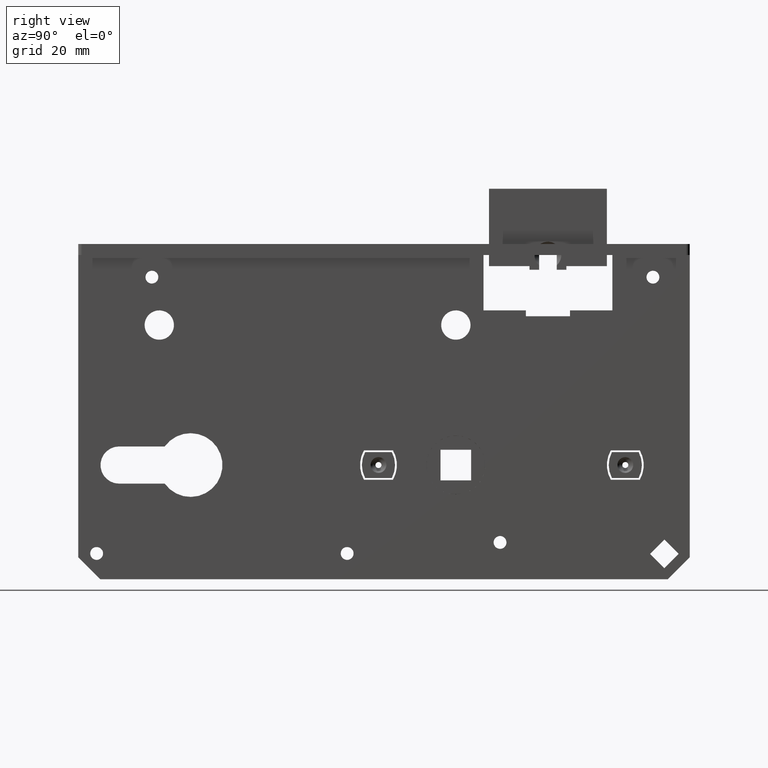
[diagram: clean part render]
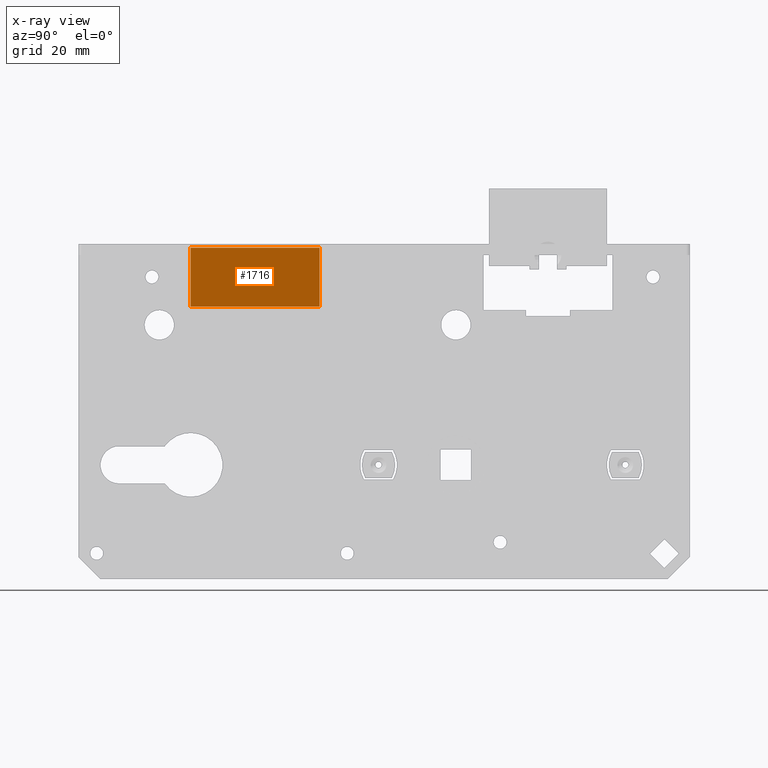
[diagram: x-ray — body ghosted, one internal face saturated and labeled with its STEP entity id]
A machine part, right view, then the same camera in x-ray: the body is ghosted and one INTERNAL B-rep face — a face not visible from any outside direction — is saturated and labeled: STEP entity #1716.
In plain terms, the highlighted planar face has unit normal (-1, -0, 0).
Its self-contained STEP definition (entity closure, byte-faithful):
#789 = VECTOR ( 'NONE', #9792, 1000.000000000000000 ) ;
#838 = CARTESIAN_POINT ( 'NONE',  ( 4.074999999999999289, 17.50000000000000000, -8.500000000000000000 ) ) ;
#980 = VERTEX_POINT ( 'NONE', #14246 ) ;
#1716 = ADVANCED_FACE ( 'NONE', ( #17157 ), #8442, .F. ) ;
#2271 = CARTESIAN_POINT ( 'NONE',  ( 4.075000000000001066, 5.833333333333334814, 7.500000000000000888 ) ) ;
#3690 = CARTESIAN_POINT ( 'NONE',  ( 4.074999999999999289, 17.50000000000000000, 7.500000000000000888 ) ) ;
#4874 = AXIS2_PLACEMENT_3D ( 'NONE', #19201, #17427, #18935 ) ;
#5007 = DIRECTION ( 'NONE',  ( -1.486905836551548832E-16, 1.000000000000000000, -0.000000000000000000 ) ) ;
#5694 = VERTEX_POINT ( 'NONE', #15077 ) ;
#6028 = CARTESIAN_POINT ( 'NONE',  ( 4.075000000000004619, -17.50000000000000000, 8.500000000000000000 ) ) ;
#8155 = ORIENTED_EDGE ( 'NONE', *, *, #12929, .F. ) ;
#8165 = EDGE_CURVE ( 'NONE', #980, #5694, #15426, .T. ) ;
#8442 = PLANE ( 'NONE',  #4874 ) ;
#8546 = EDGE_CURVE ( 'NONE', #5694, #11512, #15176, .T. ) ;
#9792 = DIRECTION ( 'NONE',  ( -0.000000000000000000, -0.000000000000000000, -1.000000000000000000 ) ) ;
#9892 = CARTESIAN_POINT ( 'NONE',  ( 4.074999999999999289, 17.50000000000000000, 7.500000000000000888 ) ) ;
#9916 = CARTESIAN_POINT ( 'NONE',  ( 4.074999999999999289, 17.50000000000000000, 8.500000000000000000 ) ) ;
#10257 = LINE ( 'NONE', #9916, #789 ) ;
#11051 = VERTEX_POINT ( 'NONE', #3690 ) ;
#11371 = CARTESIAN_POINT ( 'NONE',  ( 4.075000000000004619, -17.50000000000000000, 7.500000000000000888 ) ) ;
#11512 = VERTEX_POINT ( 'NONE', #838 ) ;
#12152 = EDGE_LOOP ( 'NONE', ( #8155, #16996, #16546, #19023 ) ) ;
#12481 = EDGE_CURVE ( 'NONE', #11051, #980, #14441, .T. ) ;
#12929 = EDGE_CURVE ( 'NONE', #11051, #11512, #10257, .T. ) ;
#13286 = VECTOR ( 'NONE', #18113, 1000.000000000000000 ) ;
#13511 = VECTOR ( 'NONE', #5007, 1000.000000000000000 ) ;
#14246 = CARTESIAN_POINT ( 'NONE',  ( 4.075000000000004619, -17.50000000000000000, 7.500000000000000888 ) ) ;
#14441 = B_SPLINE_CURVE_WITH_KNOTS ( 'NONE', 3,
 ( #9892, #2271, #19083, #11371 ),
 .UNSPECIFIED., .F., .F.,
 ( 4, 4 ),
 ( 0.000000000000000000, 1.000000000000000000 ),
 .UNSPECIFIED. ) ;
#15077 = CARTESIAN_POINT ( 'NONE',  ( 4.075000000000004619, -17.50000000000000000, -8.500000000000000000 ) ) ;
#15176 = LINE ( 'NONE', #15392, #13511 ) ;
#15392 = CARTESIAN_POINT ( 'NONE',  ( 4.074999999999999289, 17.50000000000000000, -8.500000000000000000 ) ) ;
#15426 = LINE ( 'NONE', #6028, #13286 ) ;
#16546 = ORIENTED_EDGE ( 'NONE', *, *, #8165, .T. ) ;
#16996 = ORIENTED_EDGE ( 'NONE', *, *, #12481, .T. ) ;
#17157 = FACE_OUTER_BOUND ( 'NONE', #12152, .T. ) ;
#17427 = DIRECTION ( 'NONE',  ( -1.000000000000000000, -1.486905836551548832E-16, 0.000000000000000000 ) ) ;
#18113 = DIRECTION ( 'NONE',  ( -0.000000000000000000, -0.000000000000000000, -1.000000000000000000 ) ) ;
#18935 = DIRECTION ( 'NONE',  ( 1.486905836551548832E-16, -1.000000000000000000, 0.000000000000000000 ) ) ;
#19023 = ORIENTED_EDGE ( 'NONE', *, *, #8546, .T. ) ;
#19083 = CARTESIAN_POINT ( 'NONE',  ( 4.075000000000002842, -5.833333333333334814, 7.500000000000000888 ) ) ;
#19201 = CARTESIAN_POINT ( 'NONE',  ( 4.074999999999999289, 17.50000000000000000, 8.500000000000000000 ) ) ;